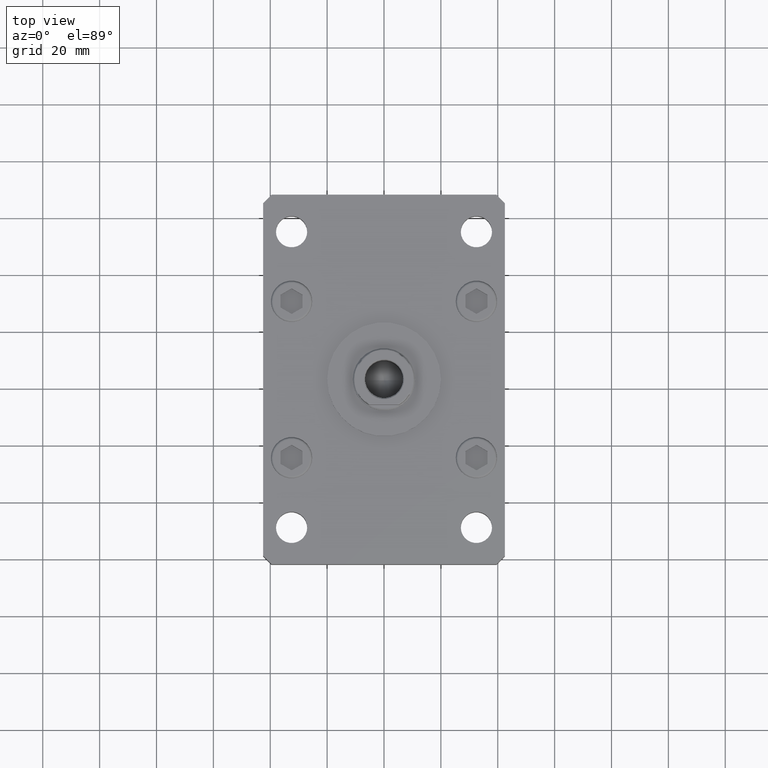
[diagram: clean part render]
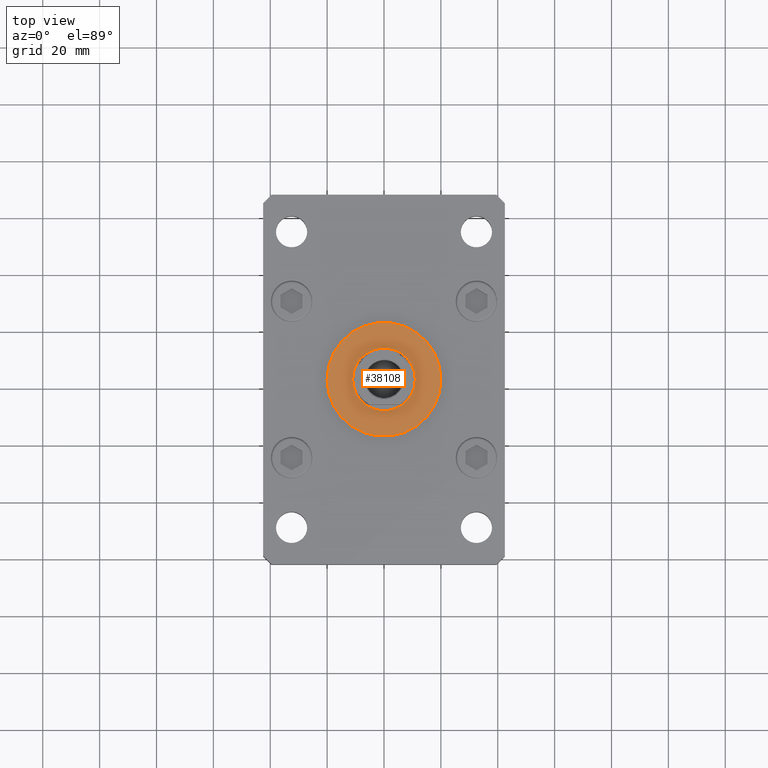
[diagram: same view with one face highlighted and labeled with its STEP entity id]
A machine part, top view. The second image highlights one B-rep face of the part: STEP entity #38108.
In plain terms, the highlighted planar face has unit normal (0, 0, 1).
Its self-contained STEP definition (entity closure, byte-faithful):
#2398 = VERTEX_POINT ( 'NONE', #44093 ) ;
#2681 = DIRECTION ( 'NONE',  ( 1.000000000000000000, 0.000000000000000000, 0.000000000000000000 ) ) ;
#2682 = EDGE_LOOP ( 'NONE', ( #41190, #18204 ) ) ;
#4867 = DIRECTION ( 'NONE',  ( 1.000000000000000000, 0.000000000000000000, 0.000000000000000000 ) ) ;
#5408 = AXIS2_PLACEMENT_3D ( 'NONE', #7765, #6970, #23545 ) ;
#6067 = DIRECTION ( 'NONE',  ( 1.000000000000000000, 0.000000000000000000, 0.000000000000000000 ) ) ;
#6970 = DIRECTION ( 'NONE',  ( 0.000000000000000000, 0.000000000000000000, 1.000000000000000000 ) ) ;
#7765 = CARTESIAN_POINT ( 'NONE',  ( 0.000000000000000000, 0.000000000000000000, 17.00000000000000000 ) ) ;
#8390 = CARTESIAN_POINT ( 'NONE',  ( 0.000000000000000000, 0.000000000000000000, 17.00000000000000000 ) ) ;
#9203 = VERTEX_POINT ( 'NONE', #19623 ) ;
#9572 = CIRCLE ( 'NONE', #19114, 11.00000000000000000 ) ;
#9622 = EDGE_CURVE ( 'NONE', #9203, #41470, #44038, .T. ) ;
#11611 = DIRECTION ( 'NONE',  ( 0.000000000000000000, 0.000000000000000000, 1.000000000000000000 ) ) ;
#14476 = DIRECTION ( 'NONE',  ( 0.000000000000000000, 0.000000000000000000, 1.000000000000000000 ) ) ;
#14737 = EDGE_LOOP ( 'NONE', ( #24921, #44668 ) ) ;
#14757 = AXIS2_PLACEMENT_3D ( 'NONE', #47031, #14476, #6067 ) ;
#14982 = CIRCLE ( 'NONE', #5408, 20.00000000000000000 ) ;
#15703 = EDGE_CURVE ( 'NONE', #2398, #25193, #9572, .T. ) ;
#18204 = ORIENTED_EDGE ( 'NONE', *, *, #9622, .T. ) ;
#18327 = CARTESIAN_POINT ( 'NONE',  ( -20.00000000000000000, 0.000000000000000000, 17.00000000000000000 ) ) ;
#19114 = AXIS2_PLACEMENT_3D ( 'NONE', #39834, #11611, #2681 ) ;
#19623 = CARTESIAN_POINT ( 'NONE',  ( 20.00000000000000000, 2.449293598294706513E-15, 17.00000000000000000 ) ) ;
#23541 = EDGE_CURVE ( 'NONE', #25193, #2398, #31205, .T. ) ;
#23545 = DIRECTION ( 'NONE',  ( 1.000000000000000000, 0.000000000000000000, 0.000000000000000000 ) ) ;
#24921 = ORIENTED_EDGE ( 'NONE', *, *, #15703, .F. ) ;
#25193 = VERTEX_POINT ( 'NONE', #46044 ) ;
#30060 = PLANE ( 'NONE',  #41874 ) ;
#31205 = CIRCLE ( 'NONE', #14757, 11.00000000000000000 ) ;
#34124 = CARTESIAN_POINT ( 'NONE',  ( 0.000000000000000000, 0.000000000000000000, 17.00000000000000000 ) ) ;
#35263 = EDGE_CURVE ( 'NONE', #41470, #9203, #14982, .T. ) ;
#37152 = DIRECTION ( 'NONE',  ( 0.000000000000000000, 0.000000000000000000, 1.000000000000000000 ) ) ;
#38108 = ADVANCED_FACE ( 'NONE', ( #42257, #38197 ), #30060, .T. ) ;
#38197 = FACE_OUTER_BOUND ( 'NONE', #2682, .T. ) ;
#39834 = CARTESIAN_POINT ( 'NONE',  ( 0.000000000000000000, 0.000000000000000000, 17.00000000000000000 ) ) ;
#41190 = ORIENTED_EDGE ( 'NONE', *, *, #35263, .T. ) ;
#41470 = VERTEX_POINT ( 'NONE', #18327 ) ;
#41551 = AXIS2_PLACEMENT_3D ( 'NONE', #8390, #37152, #4867 ) ;
#41874 = AXIS2_PLACEMENT_3D ( 'NONE', #34124, #46597, #42528 ) ;
#42257 = FACE_BOUND ( 'NONE', #14737, .T. ) ;
#42528 = DIRECTION ( 'NONE',  ( 1.000000000000000000, 0.000000000000000000, -0.000000000000000000 ) ) ;
#44038 = CIRCLE ( 'NONE', #41551, 20.00000000000000000 ) ;
#44093 = CARTESIAN_POINT ( 'NONE',  ( 11.00000000000000000, 0.000000000000000000, 17.00000000000000000 ) ) ;
#44668 = ORIENTED_EDGE ( 'NONE', *, *, #23541, .F. ) ;
#46044 = CARTESIAN_POINT ( 'NONE',  ( -11.00000000000000000, 1.347111479062088405E-15, 17.00000000000000000 ) ) ;
#46597 = DIRECTION ( 'NONE',  ( 0.000000000000000000, 0.000000000000000000, 1.000000000000000000 ) ) ;
#47031 = CARTESIAN_POINT ( 'NONE',  ( 0.000000000000000000, 0.000000000000000000, 17.00000000000000000 ) ) ;